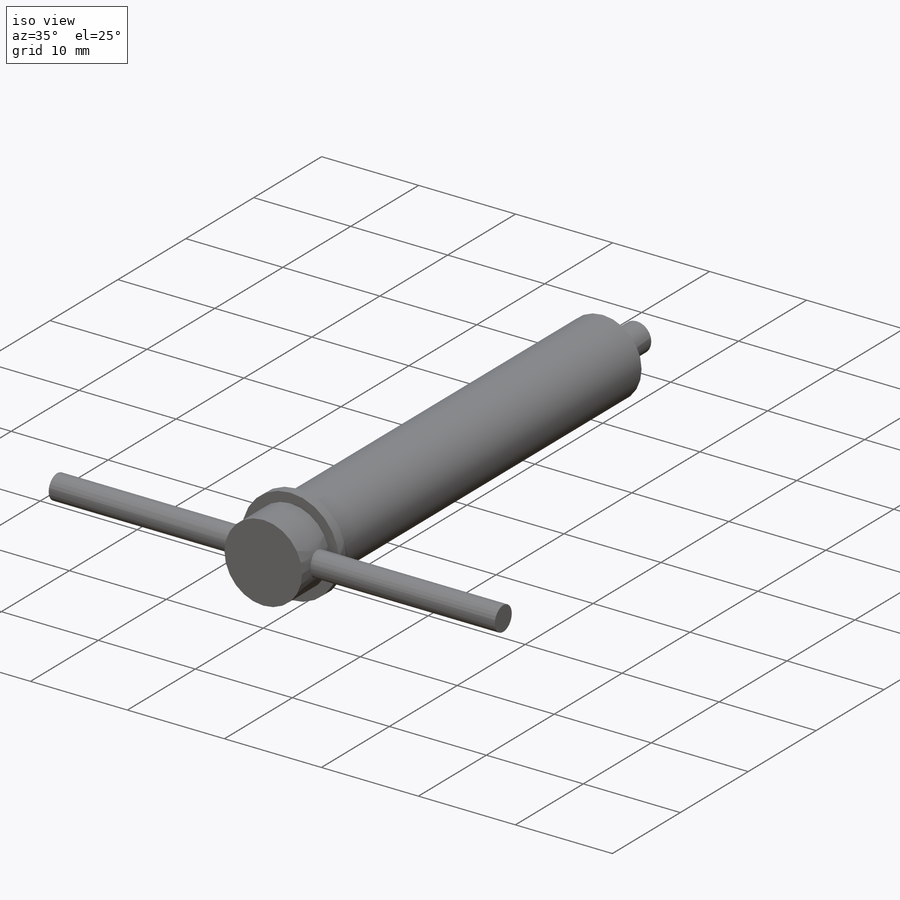
[diagram: iso view]
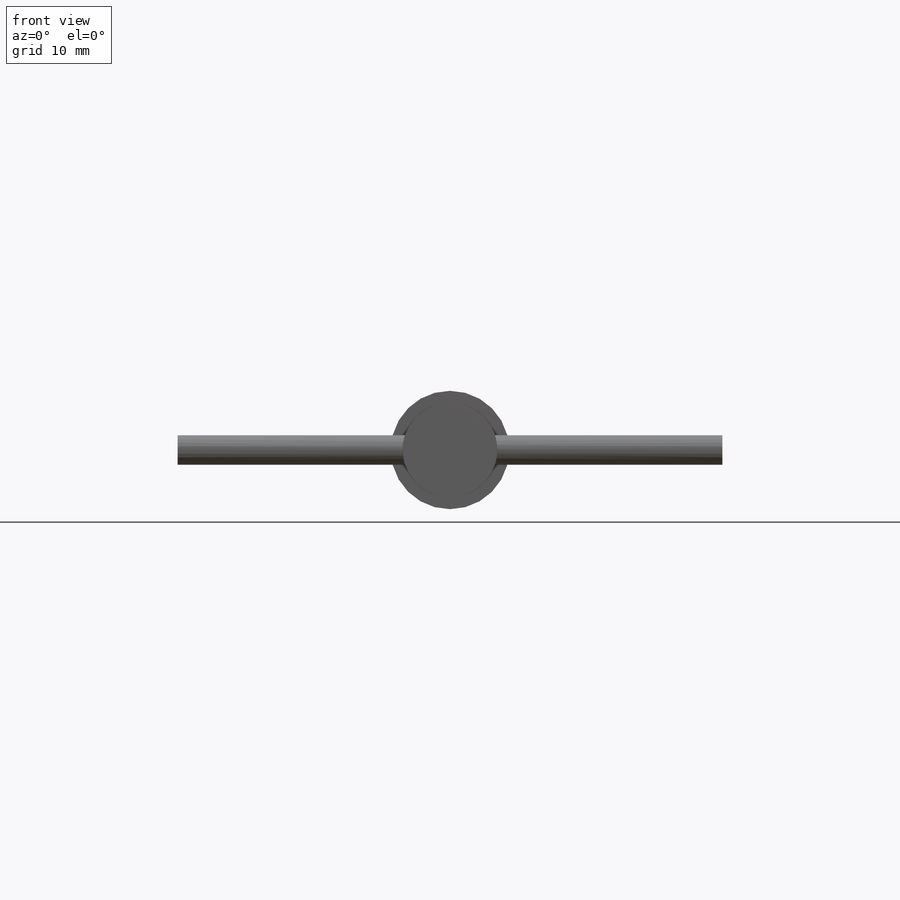
[diagram: front view]
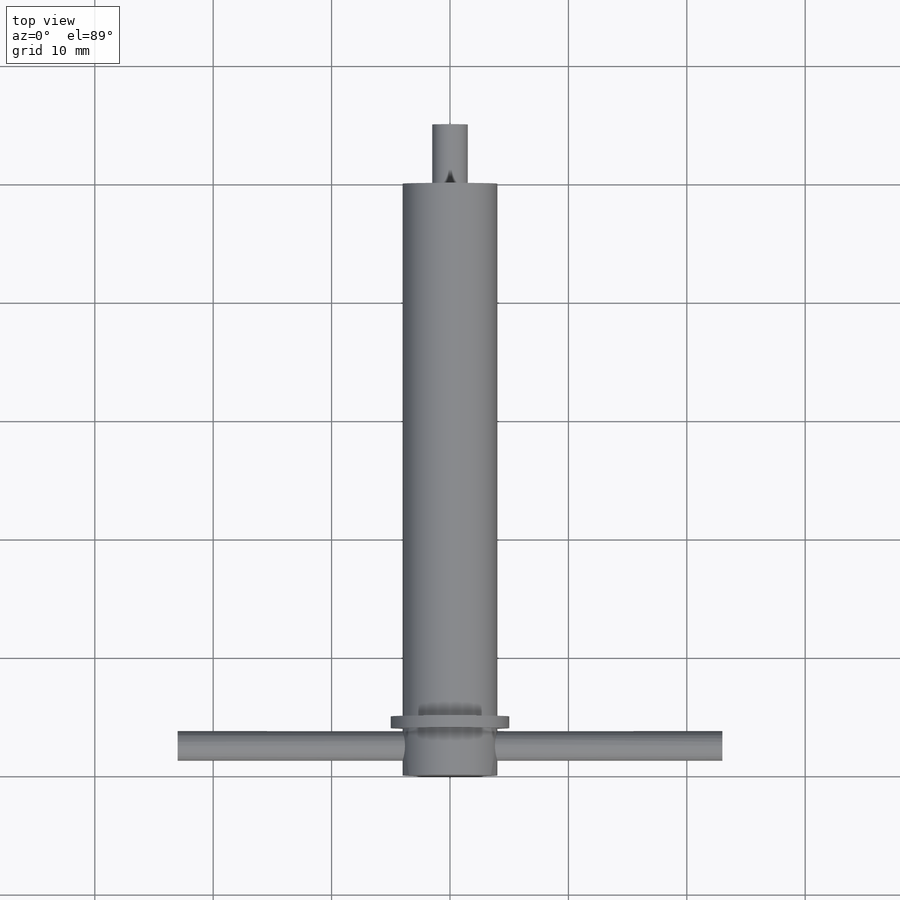
[diagram: top view]
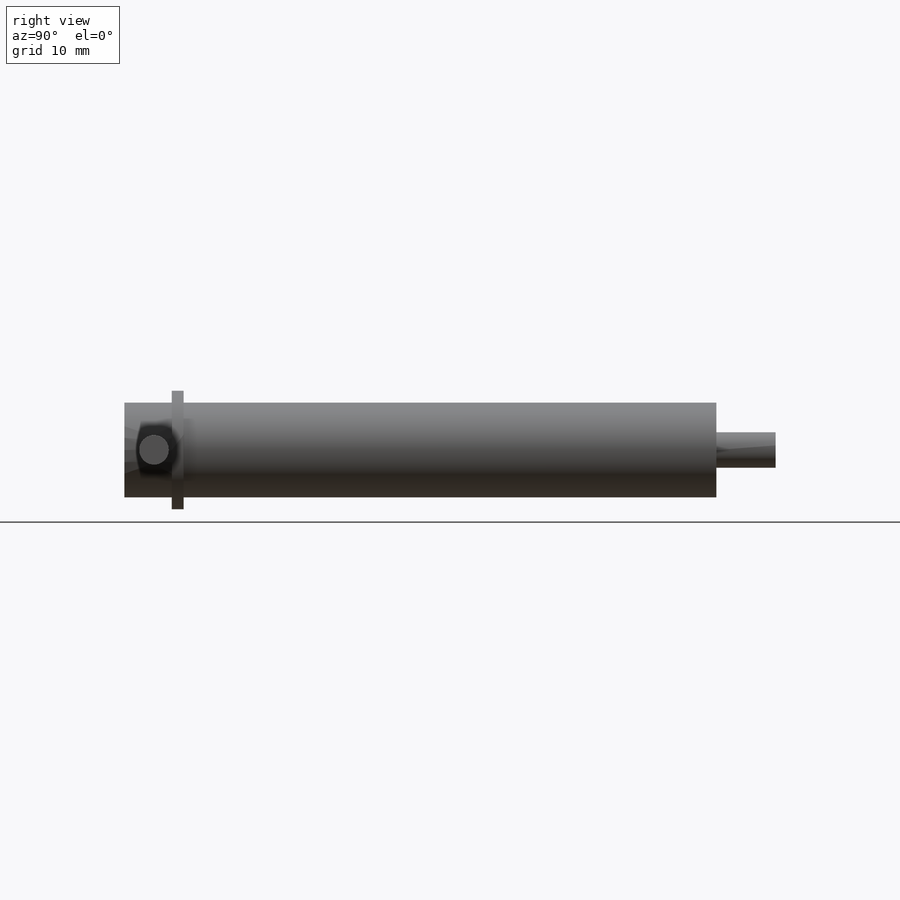
[diagram: right view]
SOLIDWORKS PART (.sldprt)
format: sldprt  version: not decoded by parser v0  size: 155,136 bytes
history: native  units: mm
features: sketch x4, extrude x4, plane x2, material x1 (+13 scaffold rows collapsed)
feature tree (24):
  scaffold x13  (default folders/planes/origin — collapsed)
  material  "Malleable Cast Iron"
  sketch  "Sketch1"  dims[D1=~15.334685mm]
  extrude  "Boss-Extrude1"  Depth=50mm
  plane  "Plane1"  Offset=4mm
  sketch  "Sketch2"  dims[D1=~4.618552mm]
  extrude  "Boss-Extrude2"  Depth=1mm
  plane  "Plane2"  Offset=0mm
  sketch  "Sketch3"  dims[c1.D1=~0.800749mm c1.D2=2.5mm c2.D1=2.5mm]
  extrude  "Boss-Extrude3"  Depth=46mm
  sketch  "Sketch4"  dims[D1=~1.123504mm]
  extrude  "Boss-Extrude4"  Depth=5mm
decode coverage: 8 of 8 modeling features carry decoded parameters
note: ~ marks probable driven/reference dimensions
note: suppression state not decoded; provenance and decode notes live in map.json
